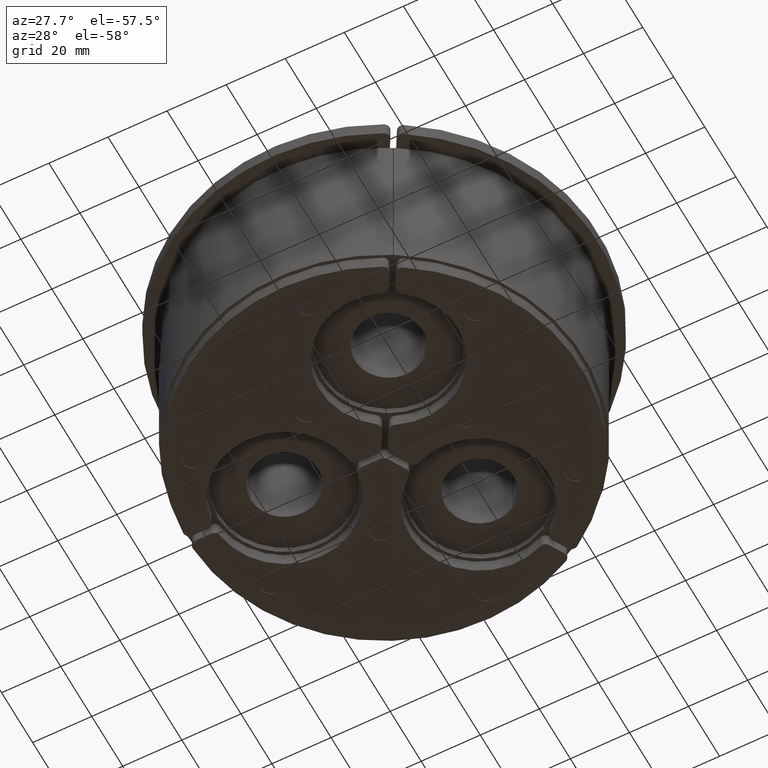
[diagram: clean part render]
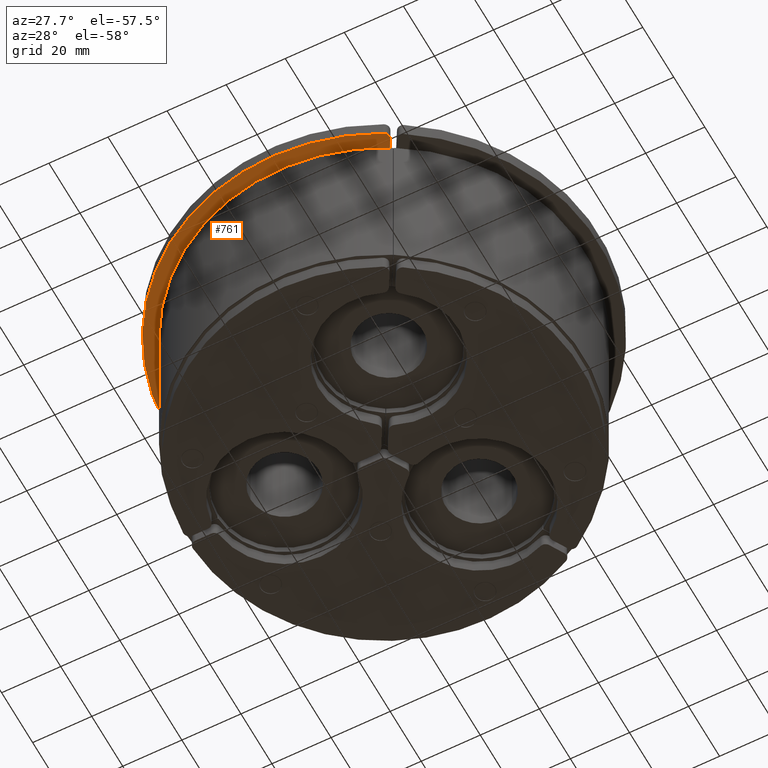
[diagram: same view with one face highlighted and labeled with its STEP entity id]
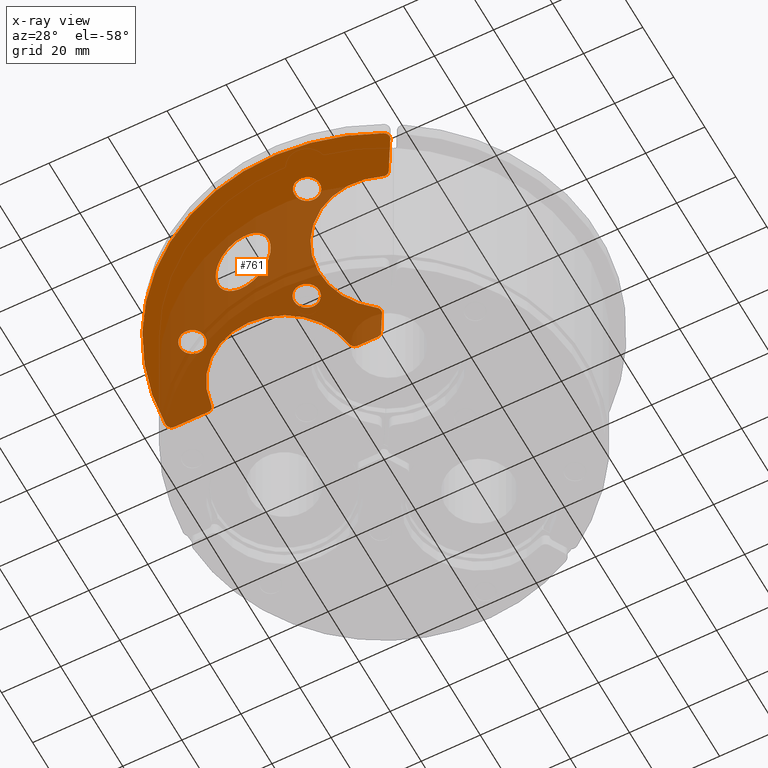
[diagram: x-ray of the same camera — body ghosted, the highlighted face saturated]
A machine part, auxiliary view. The second image highlights one B-rep face of the part: STEP entity #761.
The next image is the same camera in x-ray: the body ghosted, the highlighted face saturated — about 56% of this face is hidden behind the body in this view.
In plain terms, the highlighted planar face has unit normal (0, -0, -1).
Its self-contained STEP definition (entity closure, byte-faithful):
#144=CARTESIAN_POINT('',(-34.959292143520933,37.551270189222031,5.0));
#145=VERTEX_POINT('',#144);
#146=CARTESIAN_POINT('',(-24.999999999999876,43.301270189221995,5.0));
#147=DIRECTION('',(0.0,0.0,-1.0));
#148=DIRECTION('',(0.86602540378444,0.499999999999998,0.0));
#149=AXIS2_PLACEMENT_3D('',#146,#147,#148);
#150=ELLIPSE('',#149,11.499999999999996,6.499999999999989);
#151=EDGE_CURVE('',#145,#145,#150,.T.);
#161=CARTESIAN_POINT('',(33.545384347297286,64.272522814902032,5.0));
#162=VERTEX_POINT('',#161);
#163=CARTESIAN_POINT('',(34.35204524183726,61.499487702766807,5.0));
#164=VERTEX_POINT('',#163);
#165=CARTESIAN_POINT('',(32.619994434268392,62.499487702766807,5.0));
#166=DIRECTION('',(0.0,0.0,-1.0));
#167=DIRECTION('',(0.960199032643298,0.279316697873355,0.0));
#168=AXIS2_PLACEMENT_3D('',#165,#166,#167);
#169=CIRCLE('',#168,2.0);
#170=EDGE_CURVE('',#162,#164,#169,.T.);
#360=CARTESIAN_POINT('',(28.670431858316157,51.658644653544961,5.0));
#361=VERTEX_POINT('',#360);
#362=CARTESIAN_POINT('',(34.35204524183726,61.499487702766807,5.0));
#363=DIRECTION('',(-0.500000000000001,-0.866025403784438,0.0));
#364=VECTOR('',#363,11.363226767042187);
#365=LINE('',#362,#364);
#366=EDGE_CURVE('',#164,#361,#365,.T.);
#383=CARTESIAN_POINT('',(26.149096262453384,50.820975063284564,5.0));
#384=VERTEX_POINT('',#383);
#385=CARTESIAN_POINT('',(26.938381050747285,52.658644653544968,5.0));
#386=DIRECTION('',(0.0,0.0,-1.0));
#387=DIRECTION('',(0.315287379777029,-0.948996242433728,0.0));
#388=AXIS2_PLACEMENT_3D('',#385,#386,#387);
#389=CIRCLE('',#388,2.0);
#390=EDGE_CURVE('',#361,#384,#389,.T.);
#408=CARTESIAN_POINT('',(2.812292681326785,10.400445574517978,5.0));
#409=VERTEX_POINT('',#408);
#410=CARTESIAN_POINT('',(3.34751733411496,7.798070101904632,5.0));
#411=VERTEX_POINT('',#410);
#412=CARTESIAN_POINT('',(1.615466526546083,8.798070101904632,5.0));
#413=DIRECTION('',(0.0,0.0,-1.0));
#414=DIRECTION('',(0.979498543932099,0.201451240837327,0.0));
#415=AXIS2_PLACEMENT_3D('',#412,#413,#414);
#416=CIRCLE('',#415,2.0);
#417=EDGE_CURVE('',#409,#411,#416,.T.);
#441=CARTESIAN_POINT('',(-1.110223E-015,2.000000000000003,5.0));
#442=VERTEX_POINT('',#441);
#443=CARTESIAN_POINT('',(3.347517334114959,7.798070101904632,5.0));
#444=DIRECTION('',(-0.5,-0.866025403784438,0.0));
#445=VECTOR('',#444,6.695034668229918);
#446=LINE('',#443,#445);
#447=EDGE_CURVE('',#411,#442,#446,.T.);
#464=CARTESIAN_POINT('',(-1.732050807568884,1.000000000000003,5.0));
#465=VERTEX_POINT('',#464);
#466=CARTESIAN_POINT('',(-1.732050807568879,3.000000000000004,5.0));
#467=DIRECTION('',(0.0,0.0,-1.0));
#468=DIRECTION('',(0.499999999999999,-0.866025403784439,0.0));
#469=AXIS2_PLACEMENT_3D('',#466,#467,#468);
#470=CIRCLE('',#469,2.0);
#471=EDGE_CURVE('',#442,#465,#470,.T.);
#489=CARTESIAN_POINT('',(-8.427085475798812,1.000000000000021,5.0));
#490=VERTEX_POINT('',#489);
#491=CARTESIAN_POINT('',(-10.413196418873408,2.764705882352962,5.0));
#492=VERTEX_POINT('',#491);
#493=CARTESIAN_POINT('',(-8.427085475798805,3.000000000000021,5.0));
#494=DIRECTION('',(0.0,0.0,-1.0));
#495=DIRECTION('',(-0.664211164155072,-0.747545001596402,0.0));
#496=AXIS2_PLACEMENT_3D('',#493,#494,#495);
#497=CIRCLE('',#496,2.0);
#498=EDGE_CURVE('',#490,#492,#497,.T.);
#522=CARTESIAN_POINT('',(-57.086803581126595,2.76470588235294,5.0));
#523=VERTEX_POINT('',#522);
#524=CARTESIAN_POINT('',(-33.75,0.0,5.0));
#525=DIRECTION('',(0.0,0.0,1.0));
#526=DIRECTION('',(0.999094202712672,0.042553191489363,0.0));
#527=AXIS2_PLACEMENT_3D('',#524,#525,#526);
#528=CIRCLE('',#527,23.5);
#529=EDGE_CURVE('',#492,#523,#528,.T.);
#546=CARTESIAN_POINT('',(-59.072914524201195,1.0,5.0));
#547=VERTEX_POINT('',#546);
#548=CARTESIAN_POINT('',(-59.072914524201195,2.999999999999998,5.0));
#549=DIRECTION('',(0.0,0.0,-1.0));
#550=DIRECTION('',(0.664211164155073,-0.747545001596401,0.0));
#551=AXIS2_PLACEMENT_3D('',#548,#549,#550);
#552=CIRCLE('',#551,2.0);
#553=EDGE_CURVE('',#523,#547,#552,.T.);
#571=CARTESIAN_POINT('',(-70.436141291243374,1.0,5.0));
#572=VERTEX_POINT('',#571);
#573=CARTESIAN_POINT('',(-72.434329696668712,3.085106382978731,5.0));
#574=VERTEX_POINT('',#573);
#575=CARTESIAN_POINT('',(-70.436141291243374,3.000000000000007,5.0));
#576=DIRECTION('',(0.0,0.0,-1.0));
#577=DIRECTION('',(-0.721994872381153,-0.691898406021666,0.0));
#578=AXIS2_PLACEMENT_3D('',#575,#576,#577);
#579=CIRCLE('',#578,2.0);
#580=EDGE_CURVE('',#572,#574,#579,.T.);
#606=CARTESIAN_POINT('',(0.0,0.0,5.0));
#607=DIRECTION('',(0.0,0.0,-1.0));
#608=DIRECTION('',(-0.488007257328683,-0.87283957105217,0.0));
#609=AXIS2_PLACEMENT_3D('',#606,#607,#608);
#610=CIRCLE('',#609,72.5);
#611=EDGE_CURVE('',#574,#162,#610,.T.);
#624=CARTESIAN_POINT('',(-9.499999999999936,23.815698604072097,5.0));
#625=VERTEX_POINT('',#624);
#626=CARTESIAN_POINT('',(-13.749999999999936,23.815698604072097,5.0));
#627=DIRECTION('',(0.0,0.0,-1.0));
#628=DIRECTION('',(-1.0,0.0,0.0));
#629=AXIS2_PLACEMENT_3D('',#626,#627,#628);
#630=CIRCLE('',#629,4.25);
#631=EDGE_CURVE('',#625,#625,#630,.T.);
#644=CARTESIAN_POINT('',(8.26099724028721,57.359932889939898,5.0));
#645=VERTEX_POINT('',#644);
#646=CARTESIAN_POINT('',(4.010997240287211,57.359932889939898,5.0));
#647=DIRECTION('',(0.0,0.0,-1.0));
#648=DIRECTION('',(-1.0,0.0,0.0));
#649=AXIS2_PLACEMENT_3D('',#646,#647,#648);
#650=CIRCLE('',#649,4.25);
#651=EDGE_CURVE('',#645,#645,#650,.T.);
#664=CARTESIAN_POINT('',(-47.430657662202037,25.20634094037209,5.0));
#665=VERTEX_POINT('',#664);
#666=CARTESIAN_POINT('',(-51.68065766220203,25.20634094037209,5.0));
#667=DIRECTION('',(0.0,0.0,-1.0));
#668=DIRECTION('',(-1.0,0.0,0.0));
#669=AXIS2_PLACEMENT_3D('',#666,#667,#668);
#670=CIRCLE('',#669,4.25);
#671=EDGE_CURVE('',#665,#665,#670,.T.);
#682=CARTESIAN_POINT('',(16.875000000000004,29.228357377724802,5.0));
#683=DIRECTION('',(0.0,0.0,1.0));
#684=DIRECTION('',(0.462694956514445,0.886517556067614,0.0));
#685=AXIS2_PLACEMENT_3D('',#682,#683,#684);
#686=CIRCLE('',#685,23.5);
#687=EDGE_CURVE('',#384,#409,#686,.T.);
#700=CARTESIAN_POINT('',(-1.732050807568884,1.000000000000003,5.0));
#701=DIRECTION('',(-1.0,0.0,0.0));
#702=VECTOR('',#701,6.695034668229928);
#703=LINE('',#700,#702);
#704=EDGE_CURVE('',#465,#490,#703,.T.);
#717=CARTESIAN_POINT('',(-59.072914524201195,1.0,5.0));
#718=DIRECTION('',(-1.0,0.0,0.0));
#719=VECTOR('',#718,11.363226767042178);
#720=LINE('',#717,#719);
#721=EDGE_CURVE('',#547,#572,#720,.T.);
#728=CARTESIAN_POINT('',(-20.283703862420303,35.132405655393043,5.0));
#729=DIRECTION('',(0.0,0.0,1.0));
#730=DIRECTION('',(1.0,0.0,0.0));
#731=AXIS2_PLACEMENT_3D('',#728,#729,#730);
#732=PLANE('',#731);
#733=ORIENTED_EDGE('',*,*,#170,.F.);
#734=ORIENTED_EDGE('',*,*,#611,.F.);
#735=ORIENTED_EDGE('',*,*,#580,.F.);
#736=ORIENTED_EDGE('',*,*,#721,.F.);
#737=ORIENTED_EDGE('',*,*,#553,.F.);
#738=ORIENTED_EDGE('',*,*,#529,.F.);
#739=ORIENTED_EDGE('',*,*,#498,.F.);
#740=ORIENTED_EDGE('',*,*,#704,.F.);
#741=ORIENTED_EDGE('',*,*,#471,.F.);
#742=ORIENTED_EDGE('',*,*,#447,.F.);
#743=ORIENTED_EDGE('',*,*,#417,.F.);
#744=ORIENTED_EDGE('',*,*,#687,.F.);
#745=ORIENTED_EDGE('',*,*,#390,.F.);
#746=ORIENTED_EDGE('',*,*,#366,.F.);
#747=EDGE_LOOP('',(#733,#734,#735,#736,#737,#738,#739,#740,#741,#742,#743,#744,#745,#746));
#748=FACE_OUTER_BOUND('',#747,.T.);
#749=ORIENTED_EDGE('',*,*,#151,.T.);
#750=EDGE_LOOP('',(#749));
#751=FACE_BOUND('',#750,.T.);
#752=ORIENTED_EDGE('',*,*,#631,.T.);
#753=EDGE_LOOP('',(#752));
#754=FACE_BOUND('',#753,.T.);
#755=ORIENTED_EDGE('',*,*,#651,.T.);
#756=EDGE_LOOP('',(#755));
#757=FACE_BOUND('',#756,.T.);
#758=ORIENTED_EDGE('',*,*,#671,.T.);
#759=EDGE_LOOP('',(#758));
#760=FACE_BOUND('',#759,.T.);
#761=ADVANCED_FACE('',(#748,#751,#754,#757,#760),#732,.T.);